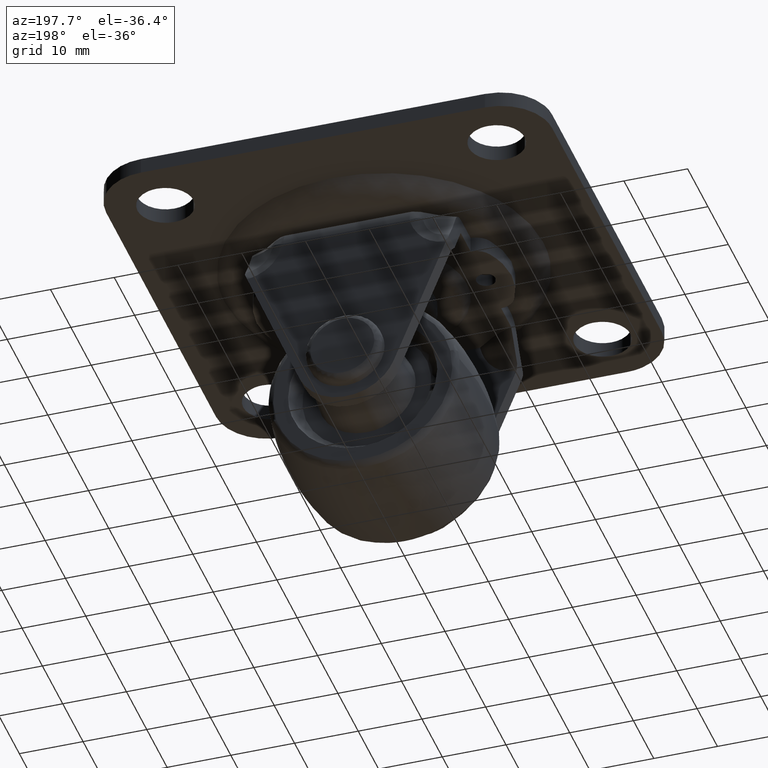
[diagram: clean part render]
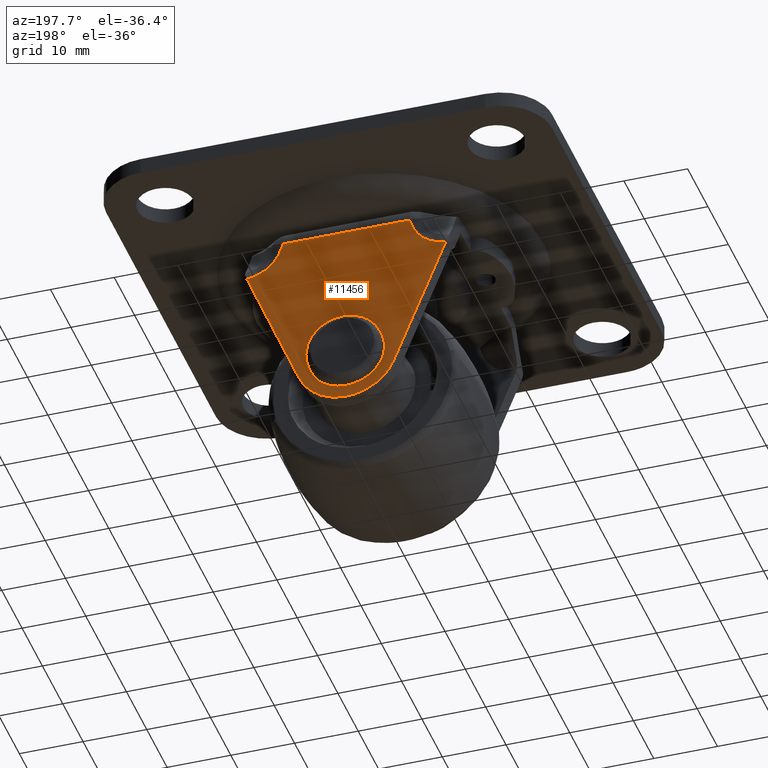
[diagram: same view with one face highlighted and labeled with its STEP entity id]
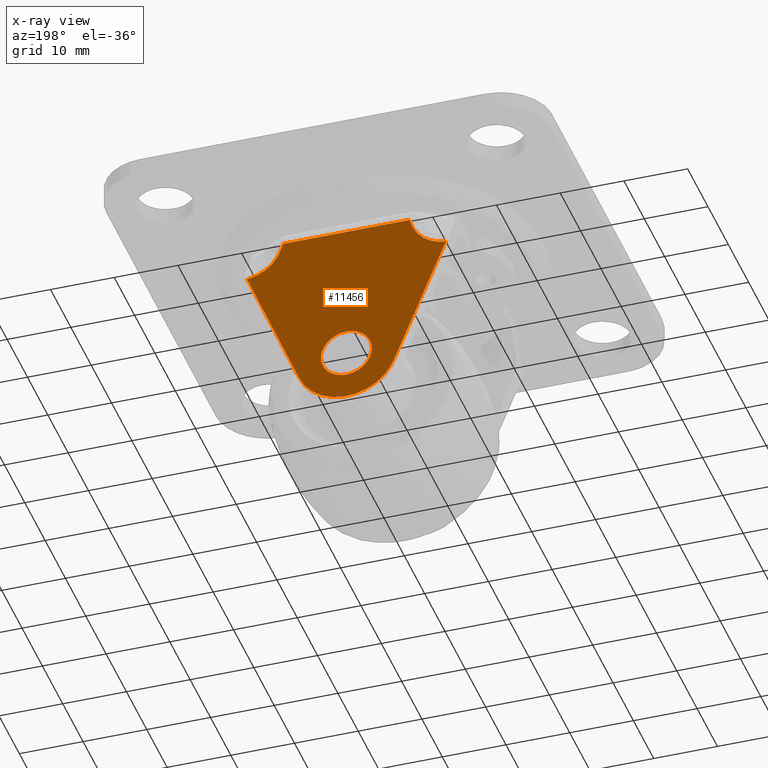
[diagram: x-ray of the same camera — body ghosted, the highlighted face saturated]
A machine part, auxiliary view. The second image highlights one B-rep face of the part: STEP entity #11456.
The next image is the same camera in x-ray: the body ghosted, the highlighted face saturated — about 0% of this face is hidden behind the body in this view.
In plain terms, the highlighted face is a freeform B-spline surface patch.
Its self-contained STEP definition (entity closure, byte-faithful):
#7506=CARTESIAN_POINT('',(2.949109543879249,18.499868047240941,-2.702361045532896));
#7507=VERTEX_POINT('',#7506);
#7513=CARTESIAN_POINT('',(4.898425E-016,18.499903729169649,-3.999999999999999));
#7514=VERTEX_POINT('',#7513);
#7515=CARTESIAN_POINT('',(2.949109543879249,18.499868047240941,-2.702361045532896));
#7516=CARTESIAN_POINT('',(2.669215807997480,18.499876455617041,-3.008154548464877));
#7517=CARTESIAN_POINT('',(2.122479829720173,18.499888440009819,-3.443996992708689));
#7518=CARTESIAN_POINT('',(1.105251234156289,18.499900747794641,-3.891592217348907));
#7519=CARTESIAN_POINT('',(0.414549046966100,18.499903734938339,-4.000217234939788));
#7520=CARTESIAN_POINT('',(4.898425E-016,18.499903729169649,-3.999999999999999));
#7521=B_SPLINE_CURVE_WITH_KNOTS('',3,(#7515,#7516,#7517,#7518,#7519,#7520),.UNSPECIFIED.,.F.,.U.,(4,1,1,4),(0.000000032340388,1.243563510261372,2.072585378875615,3.316148856769841),.UNSPECIFIED.);
#7522=EDGE_CURVE('',#7507,#7514,#7521,.T.);
#7524=CARTESIAN_POINT('',(-3.999999999999830,18.499793743307968,0.000001164617967));
#7525=VERTEX_POINT('',#7524);
#7526=CARTESIAN_POINT('',(4.898425E-016,18.499903729169649,-3.999999999999999));
#7527=CARTESIAN_POINT('',(-0.441826443374790,18.499903737436568,-4.000300653604837));
#7528=CARTESIAN_POINT('',(-1.194294073694836,18.499900263338809,-3.873953549523640));
#7529=CARTESIAN_POINT('',(-2.129789523257889,18.499887903506849,-3.424447209092581));
#7530=CARTESIAN_POINT('',(-2.775118199002949,18.499873877636610,-2.914349855366982));
#7531=CARTESIAN_POINT('',(-3.257820023474301,18.499858490300891,-2.354738280098049));
#7532=CARTESIAN_POINT('',(-3.654690619371200,18.499840286694710,-1.692703682504528));
#7533=CARTESIAN_POINT('',(-3.932852540567090,18.499818488131240,-0.899926522361305));
#7534=CARTESIAN_POINT('',(-4.000050642957694,18.499801841708958,-0.294524081200534));
#7535=CARTESIAN_POINT('',(-3.999999999999830,18.499793743307968,0.000001164617967));
#7536=B_SPLINE_CURVE_WITH_KNOTS('',3,(#7526,#7527,#7528,#7529,#7530,#7531,#7532,#7533,#7534,#7535),.UNSPECIFIED.,.F.,.U.,(4,1,1,1,1,1,1,4),(0.000000115547877,1.325361792575473,2.258039633027368,3.092559981485167,3.779750837866269,4.466974117585795,5.399650795429208,6.283225389433687),.UNSPECIFIED.);
#7537=EDGE_CURVE('',#7514,#7525,#7536,.T.);
#7539=CARTESIAN_POINT('',(0.0,18.499683757510351,3.999999999999999));
#7540=VERTEX_POINT('',#7539);
#7541=CARTESIAN_POINT('',(-3.999999999999830,18.499793743307968,0.000001164617967));
#7542=CARTESIAN_POINT('',(-4.000452041179103,18.499780244234810,0.490939795745271));
#7543=CARTESIAN_POINT('',(-3.844356917477474,18.499757307792880,1.325099684894991));
#7544=CARTESIAN_POINT('',(-3.332966011790200,18.499731389000260,2.267722670456845));
#7545=CARTESIAN_POINT('',(-2.732224029904952,18.499712240494759,2.964121663030825));
#7546=CARTESIAN_POINT('',(-2.072713187362588,18.499698616442188,3.459605598700595));
#7547=CARTESIAN_POINT('',(-1.128826964004576,18.499686921757881,3.884921620702956));
#7548=CARTESIAN_POINT('',(-0.441832031979595,18.499683750165460,4.000267128825893));
#7549=CARTESIAN_POINT('',(0.0,18.499683757510351,3.999999999999999));
#7550=B_SPLINE_CURVE_WITH_KNOTS('',3,(#7541,#7542,#7543,#7544,#7545,#7546,#7547,#7548,#7549),.UNSPECIFIED.,.F.,.U.,(4,1,1,1,1,1,4),(0.000000115951578,1.472629158498782,2.503475710453577,3.190664651521267,4.221528388951164,4.957862986084823,6.283224076629565),.UNSPECIFIED.);
#7551=EDGE_CURVE('',#7525,#7540,#7550,.T.);
#7553=CARTESIAN_POINT('',(2.866603744212325,18.499717036832180,2.789727701243758));
#7554=VERTEX_POINT('',#7553);
#7555=CARTESIAN_POINT('',(0.0,18.499683757510351,3.999999999999999));
#7556=CARTESIAN_POINT('',(0.366219892355593,18.499683754075960,4.000130112017200));
#7557=CARTESIAN_POINT('',(1.065258242457990,18.499686416280749,3.903320134912665));
#7558=CARTESIAN_POINT('',(2.054386064785399,18.499697898495000,3.485745346351027));
#7559=CARTESIAN_POINT('',(2.611269292319026,18.499709818336921,3.052248625859317));
#7560=CARTESIAN_POINT('',(2.866603744212325,18.499717036832180,2.789727701243758));
#7561=B_SPLINE_CURVE_WITH_KNOTS('',3,(#7555,#7556,#7557,#7558,#7559,#7560),.UNSPECIFIED.,.F.,.U.,(4,1,1,4),(0.000000030595950,1.098621835224204,2.097352734727396,3.195974539330711),.UNSPECIFIED.);
#7562=EDGE_CURVE('',#7540,#7554,#7561,.T.);
#7598=CARTESIAN_POINT('',(3.999999999999830,18.499793743372020,-0.000001164617999));
#7599=VERTEX_POINT('',#7598);
#7600=CARTESIAN_POINT('',(2.866603744212325,18.499717036832180,2.789727701243758));
#7601=CARTESIAN_POINT('',(3.113387628614221,18.499724005842388,2.536272794656338));
#7602=CARTESIAN_POINT('',(3.519683742196083,18.499739042756470,1.989397476616194));
#7603=CARTESIAN_POINT('',(3.909826134455761,18.499765449191081,1.029025738793210));
#7604=CARTESIAN_POINT('',(4.000115758827260,18.499784016401399,0.353757601300862));
#7605=CARTESIAN_POINT('',(3.999999999999830,18.499793743372020,-0.000001164617999));
#7606=B_SPLINE_CURVE_WITH_KNOTS('',3,(#7600,#7601,#7602,#7603,#7604,#7605),.UNSPECIFIED.,.F.,.U.,(4,1,1,4),(0.000000029170364,1.061244263463801,2.026006930577919,3.087251164864630),.UNSPECIFIED.);
#7607=EDGE_CURVE('',#7554,#7599,#7606,.T.);
#7609=CARTESIAN_POINT('',(3.999999999999830,18.499793743372020,-0.000001164617999));
#7610=CARTESIAN_POINT('',(4.000238642483927,18.499805641633579,-0.432729433685152));
#7611=CARTESIAN_POINT('',(3.880971531753059,18.499825607927111,-1.158884238968100));
#7612=CARTESIAN_POINT('',(3.461885613699332,18.499850422472768,-2.061365250704366));
#7613=CARTESIAN_POINT('',(3.126613172672842,18.499862722077861,-2.508690025155385));
#7614=CARTESIAN_POINT('',(2.949109543879249,18.499868047240941,-2.702361045532896));
#7615=B_SPLINE_CURVE_WITH_KNOTS('',3,(#7609,#7610,#7611,#7612,#7613,#7614),.UNSPECIFIED.,.F.,.U.,(4,1,1,4),(0.000000023935154,1.298107851100601,2.178945386913541,2.967075304117334),.UNSPECIFIED.);
#7616=EDGE_CURVE('',#7599,#7507,#7615,.T.);
#9731=CARTESIAN_POINT('',(9.912422099871089,18.499175070780051,22.500082489372101));
#9732=VERTEX_POINT('',#9731);
#9798=CARTESIAN_POINT('',(-9.912430099870971,18.499175070780051,22.500082489372101));
#9799=VERTEX_POINT('',#9798);
#10229=CARTESIAN_POINT('',(-15.604113263857400,18.499320193114549,17.222226789682850));
#10230=VERTEX_POINT('',#10229);
#10231=CARTESIAN_POINT('',(-15.604113263857400,18.499320193114549,17.222226789682850));
#10232=CARTESIAN_POINT('',(-11.134000780110929,18.499306230846592,17.730011034288854));
#10233=CARTESIAN_POINT('',(-9.912430099870971,18.499175070780051,22.500082489372101));
#10241=(BOUNDED_CURVE()B_SPLINE_CURVE(2,(#10231,#10232,#10233),.UNSPECIFIED.,.F.,.U.)CURVE()GEOMETRIC_REPRESENTATION_ITEM()QUASI_UNIFORM_CURVE()RATIONAL_B_SPLINE_CURVE((1.0,0.936557812525836,1.0))REPRESENTATION_ITEM(''));
#10242=EDGE_CURVE('',#10230,#9799,#10241,.T.);
#10311=CARTESIAN_POINT('',(15.604092255281500,18.499320193073899,17.222228267408600));
#10312=VERTEX_POINT('',#10311);
#10313=CARTESIAN_POINT('',(9.912422099871089,18.499175070780051,22.500082489372101));
#10314=CARTESIAN_POINT('',(11.133990753684770,18.499306230629173,17.730018947214287));
#10315=CARTESIAN_POINT('',(15.604092255281500,18.499320193073899,17.222228267408600));
#10323=(BOUNDED_CURVE()B_SPLINE_CURVE(2,(#10313,#10314,#10315),.UNSPECIFIED.,.F.,.U.)CURVE()GEOMETRIC_REPRESENTATION_ITEM()QUASI_UNIFORM_CURVE()RATIONAL_B_SPLINE_CURVE((1.0,0.936558003403526,1.0))REPRESENTATION_ITEM(''));
#10324=EDGE_CURVE('',#9732,#10312,#10323,.T.);
#10580=CARTESIAN_POINT('',(-9.912430099870971,18.499175070780051,22.500082489372101));
#10581=CARTESIAN_POINT('',(9.912422099871089,18.499175070780051,22.500082489372101));
#10582=QUASI_UNIFORM_CURVE('',1,(#10580,#10581),.UNSPECIFIED.,.F.,.U.);
#10583=EDGE_CURVE('',#9799,#9732,#10582,.T.);
#11205=CARTESIAN_POINT('',(-7.415228080747780,18.499876298643098,-3.002397793524800));
#11206=VERTEX_POINT('',#11205);
#11207=CARTESIAN_POINT('',(-7.415228080747780,18.499876298643098,-3.002397793524800));
#11208=CARTESIAN_POINT('',(-15.604113263857400,18.499320193114549,17.222226789682850));
#11209=QUASI_UNIFORM_CURVE('',1,(#11207,#11208),.UNSPECIFIED.,.F.,.U.);
#11210=EDGE_CURVE('',#11206,#10230,#11209,.T.);
#11411=CARTESIAN_POINT('',(-17.162963362011141,18.500055605824180,-9.523498982004581));
#11412=CARTESIAN_POINT('',(-17.162963362011141,18.499133180517230,24.023561031062510));
#11413=CARTESIAN_POINT('',(17.162942911481441,18.500055605824180,-9.523498982004581));
#11414=CARTESIAN_POINT('',(17.162942911481441,18.499133180517230,24.023561031062510));
#11415=B_SPLINE_SURFACE_WITH_KNOTS('',1,1,((#11411,#11413),(#11412,#11414)),.UNSPECIFIED.,.F.,.F.,.U.,(2,2),(2,2),(0.0,33.547060025748799),(0.0,34.325906273492578),.UNSPECIFIED.);
#11416=ORIENTED_EDGE('',*,*,#11210,.T.);
#11417=ORIENTED_EDGE('',*,*,#10242,.T.);
#11418=ORIENTED_EDGE('',*,*,#10583,.T.);
#11419=ORIENTED_EDGE('',*,*,#10324,.T.);
#11420=CARTESIAN_POINT('',(7.419933571978580,18.499875978371101,-2.990750037603505));
#11421=VERTEX_POINT('',#11420);
#11422=CARTESIAN_POINT('',(15.604092255281500,18.499320193073899,17.222228267408600));
#11423=CARTESIAN_POINT('',(7.419933571978580,18.499875978371101,-2.990750037603505));
#11424=QUASI_UNIFORM_CURVE('',1,(#11422,#11423),.UNSPECIFIED.,.F.,.U.);
#11425=EDGE_CURVE('',#10312,#11421,#11424,.T.);
#11426=ORIENTED_EDGE('',*,*,#11425,.T.);
#11427=CARTESIAN_POINT('',(7.419933571978580,18.499875978371101,-2.990750037603505));
#11428=CARTESIAN_POINT('',(7.290528886543327,18.499884806394618,-3.311810435549601));
#11429=CARTESIAN_POINT('',(6.936316482698489,18.499905070740770,-4.048790686888029));
#11430=CARTESIAN_POINT('',(6.290607228074237,18.499930964164310,-4.990491039110303));
#11431=CARTESIAN_POINT('',(5.328808157645907,18.499959389376130,-6.024268278593971));
#11432=CARTESIAN_POINT('',(4.234943968730480,18.499982027009359,-6.847560984836040));
#11433=CARTESIAN_POINT('',(2.761208245221566,18.500001626217951,-7.560351338938478));
#11434=CARTESIAN_POINT('',(1.366881094467243,18.500011842102811,-7.931885883863194));
#11435=CARTESIAN_POINT('',(-0.142382960751136,18.500014764047538,-8.038152139207110));
#11436=CARTESIAN_POINT('',(-1.674148816288301,18.500010489040719,-7.882677284211971));
#11437=CARTESIAN_POINT('',(-3.120313360569229,18.499997759639850,-7.419730395713724));
#11438=CARTESIAN_POINT('',(-4.317069071557605,18.499979781106429,-6.765881245904258));
#11439=CARTESIAN_POINT('',(-5.331461438620345,18.499959058789280,-6.012245411232008));
#11440=CARTESIAN_POINT('',(-6.472435066002625,18.499926678532770,-4.834629780548290));
#11441=CARTESIAN_POINT('',(-7.127819558274414,18.499895838125020,-3.713015984550797));
#11442=CARTESIAN_POINT('',(-7.415228080747780,18.499876298643098,-3.002397793524800));
#11443=B_SPLINE_CURVE_WITH_KNOTS('',3,(#11427,#11428,#11429,#11430,#11431,#11432,#11433,#11434,#11435,#11436,#11437,#11438,#11439,#11440,#11441,#11442),.UNSPECIFIED.,.F.,.U.,(4,1,1,1,1,1,1,1,1,1,1,1,1,4),(0.000000160079516,1.038480811740385,2.447881174221802,3.412236246392654,5.266719524454812,6.527768839548434,8.308065817533510,9.569059357470707,11.052657141061241,12.907146710745209,14.094029334716760,15.132537864350409,16.690318754022840,18.989849753287469),.UNSPECIFIED.);
#11444=EDGE_CURVE('',#11421,#11206,#11443,.T.);
#11445=ORIENTED_EDGE('',*,*,#11444,.T.);
#11446=EDGE_LOOP('',(#11416,#11417,#11418,#11419,#11426,#11445));
#11447=FACE_OUTER_BOUND('',#11446,.T.);
#11448=ORIENTED_EDGE('',*,*,#7537,.F.);
#11449=ORIENTED_EDGE('',*,*,#7522,.F.);
#11450=ORIENTED_EDGE('',*,*,#7616,.F.);
#11451=ORIENTED_EDGE('',*,*,#7607,.F.);
#11452=ORIENTED_EDGE('',*,*,#7562,.F.);
#11453=ORIENTED_EDGE('',*,*,#7551,.F.);
#11454=EDGE_LOOP('',(#11448,#11449,#11450,#11451,#11452,#11453));
#11455=FACE_BOUND('',#11454,.T.);
#11456=ADVANCED_FACE('',(#11447,#11455),#11415,.T.);